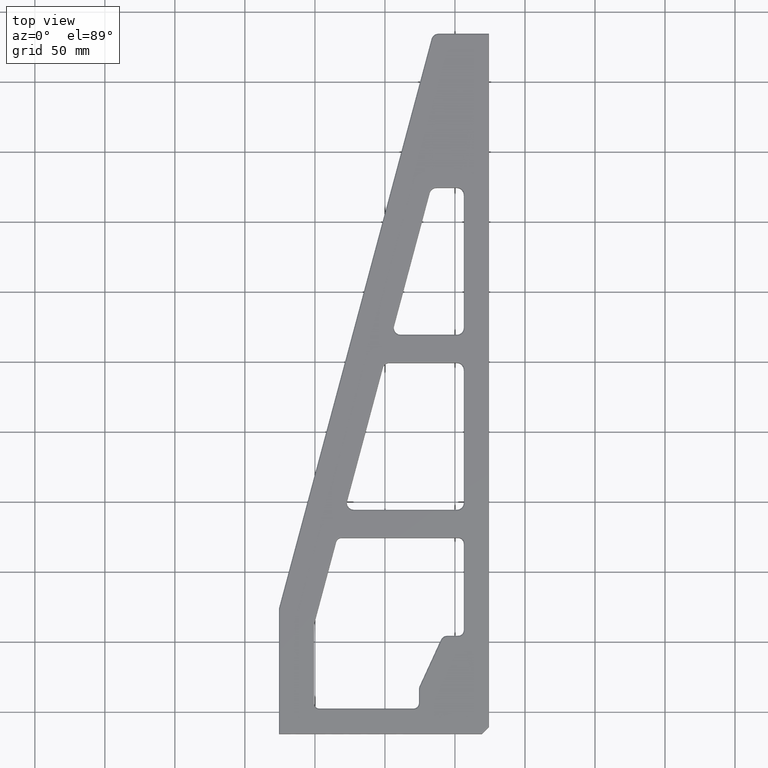
[diagram: clean part render]
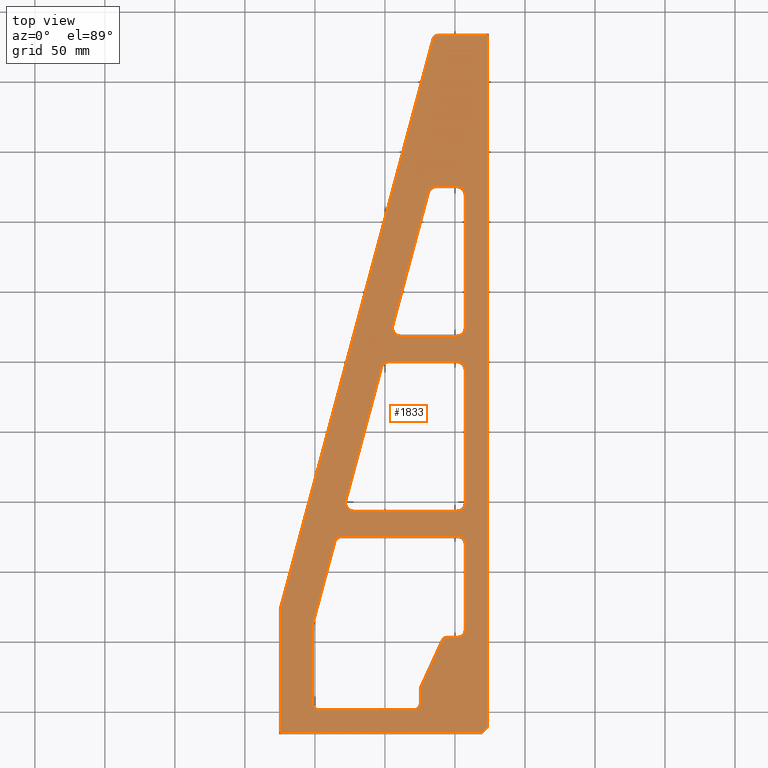
[diagram: same view with one face highlighted and labeled with its STEP entity id]
A machine part, top view. The second image highlights one B-rep face of the part: STEP entity #1833.
In plain terms, the highlighted planar face has unit normal (0, 0, 1).
Its self-contained STEP definition (entity closure, byte-faithful):
#2 = DIRECTION ( 'NONE',  ( -1.000000000000000000, 0.0000000000000000000, -0.0000000000000000000 ) ) ;
#32 = DIRECTION ( 'NONE',  ( 0.2588190451025175800, 0.9659258262890692000, -0.0000000000000000000 ) ) ;
#34 = AXIS2_PLACEMENT_3D ( 'NONE', #2063, #5828, #2611 ) ;
#72 = VERTEX_POINT ( 'NONE', #3406 ) ;
#87 = VECTOR ( 'NONE', #1468, 1000.000000000000000 ) ;
#109 = CARTESIAN_POINT ( 'NONE',  ( 109.9729316347385300, 496.0352761804101100, 18.00000000000001400 ) ) ;
#118 = AXIS2_PLACEMENT_3D ( 'NONE', #6537, #3843, #3318 ) ;
#123 = ORIENTED_EDGE ( 'NONE', *, *, #3271, .T. ) ;
#131 = VERTEX_POINT ( 'NONE', #283 ) ;
#173 = EDGE_CURVE ( 'NONE', #4154, #1102, #555, .T. ) ;
#183 = EDGE_CURVE ( 'NONE', #523, #2766, #6104, .T. ) ;
#265 = ORIENTED_EDGE ( 'NONE', *, *, #2588, .T. ) ;
#282 = VECTOR ( 'NONE', #3667, 1000.000000000000000 ) ;
#283 = CARTESIAN_POINT ( 'NONE',  ( 128.0000000000000000, 69.00000000000000000, 18.00000000000001400 ) ) ;
#291 = VECTOR ( 'NONE', #1096, 1000.000000000000000 ) ;
#319 = LINE ( 'NONE', #5278, #4242 ) ;
#328 = ORIENTED_EDGE ( 'NONE', *, *, #493, .T. ) ;
#361 = LINE ( 'NONE', #6826, #1592 ) ;
#383 = CIRCLE ( 'NONE', #6279, 5.000000000000004400 ) ;
#420 = PLANE ( 'NONE',  #5222 ) ;
#425 = VERTEX_POINT ( 'NONE', #2397 ) ;
#430 = AXIS2_PLACEMENT_3D ( 'NONE', #1911, #1500, #4808 ) ;
#493 = EDGE_CURVE ( 'NONE', #6581, #1005, #1957, .T. ) ;
#494 = CARTESIAN_POINT ( 'NONE',  ( 127.0000000000000000, 266.0000000000000000, 18.00000000000001400 ) ) ;
#501 = DIRECTION ( 'NONE',  ( 1.000000000000000000, 0.0000000000000000000, 0.0000000000000000000 ) ) ;
#506 = DIRECTION ( 'NONE',  ( 1.000000000000000000, 0.0000000000000000000, 0.0000000000000000000 ) ) ;
#510 = VECTOR ( 'NONE', #760, 1000.000000000000000 ) ;
#512 = EDGE_CURVE ( 'NONE', #425, #2935, #4493, .T. ) ;
#523 = VERTEX_POINT ( 'NONE', #4246 ) ;
#555 = CIRCLE ( 'NONE', #6751, 6.000000000000005300 ) ;
#590 = LINE ( 'NONE', #3891, #4870 ) ;
#592 = LINE ( 'NONE', #5408, #4711 ) ;
#603 = ORIENTED_EDGE ( 'NONE', *, *, #2806, .T. ) ;
#612 = ORIENTED_EDGE ( 'NONE', *, *, #3686, .T. ) ;
#626 = ORIENTED_EDGE ( 'NONE', *, *, #3617, .T. ) ;
#630 = ORIENTED_EDGE ( 'NONE', *, *, #173, .T. ) ;
#631 = VECTOR ( 'NONE', #4149, 1000.000000000000000 ) ;
#652 = FACE_BOUND ( 'NONE', #5714, .T. ) ;
#664 = AXIS2_PLACEMENT_3D ( 'NONE', #3788, #1079, #6549 ) ;
#674 = DIRECTION ( 'NONE',  ( 1.000000000000000000, 0.0000000000000000000, 0.0000000000000000000 ) ) ;
#702 = CARTESIAN_POINT ( 'NONE',  ( 127.0000000000000000, 391.0000000000000000, 18.00000000000001400 ) ) ;
#712 = LINE ( 'NONE', #3798, #2299 ) ;
#748 = VECTOR ( 'NONE', #2, 1000.000000000000000 ) ;
#760 = DIRECTION ( 'NONE',  ( 1.000000000000000000, -0.0000000000000000000, -0.0000000000000000000 ) ) ;
#772 = DIRECTION ( 'NONE',  ( -0.2588190451025177400, -0.9659258262890690900, 0.0000000000000000000 ) ) ;
#786 = DIRECTION ( 'NONE',  ( 0.0000000000000000000, -0.0000000000000000000, -1.000000000000000000 ) ) ;
#799 = DIRECTION ( 'NONE',  ( 1.000000000000000000, 0.0000000000000000000, 0.0000000000000000000 ) ) ;
#834 = LINE ( 'NONE', #6916, #282 ) ;
#903 = DIRECTION ( 'NONE',  ( 0.0000000000000000000, -0.0000000000000000000, -1.000000000000000000 ) ) ;
#908 = EDGE_CURVE ( 'NONE', #2454, #2963, #590, .T. ) ;
#919 = DIRECTION ( 'NONE',  ( 0.0000000000000000000, -0.0000000000000000000, -1.000000000000000000 ) ) ;
#924 = CARTESIAN_POINT ( 'NONE',  ( 100.9999999999999900, 21.99999999999999300, 18.00000000000001400 ) ) ;
#932 = AXIS2_PLACEMENT_3D ( 'NONE', #2401, #3474, #799 ) ;
#939 = VERTEX_POINT ( 'NONE', #2230 ) ;
#986 = EDGE_CURVE ( 'NONE', #939, #6798, #4021, .T. ) ;
#993 = CARTESIAN_POINT ( 'NONE',  ( 133.0000000000000000, 136.0000000000000000, 18.00000000000001400 ) ) ;
#1004 = CARTESIAN_POINT ( 'NONE',  ( 127.0000000000000000, 266.0000000000000000, 18.00000000000001400 ) ) ;
#1005 = VERTEX_POINT ( 'NONE', #1215 ) ;
#1014 = CARTESIAN_POINT ( 'NONE',  ( 149.0000000000000000, 500.0000000000000000, 18.00000000000001400 ) ) ;
#1073 = AXIS2_PLACEMENT_3D ( 'NONE', #3341, #6570, #6035 ) ;
#1079 = DIRECTION ( 'NONE',  ( 0.0000000000000000000, -0.0000000000000000000, -1.000000000000000000 ) ) ;
#1096 = DIRECTION ( 'NONE',  ( -0.0000000000000000000, -1.000000000000000000, 0.0000000000000000000 ) ) ;
#1102 = VERTEX_POINT ( 'NONE', #1896 ) ;
#1126 = EDGE_CURVE ( 'NONE', #5404, #72, #3601, .T. ) ;
#1146 = EDGE_CURVE ( 'NONE', #131, #6492, #2337, .T. ) ;
#1155 = ORIENTED_EDGE ( 'NONE', *, *, #2760, .T. ) ;
#1171 = VECTOR ( 'NONE', #772, 1000.000000000000100 ) ;
#1178 = VECTOR ( 'NONE', #1550, 1000.000000000000000 ) ;
#1184 = CARTESIAN_POINT ( 'NONE',  ( 47.69240568582335300, 166.5529142706151000, 18.00000000000001400 ) ) ;
#1215 = CARTESIAN_POINT ( 'NONE',  ( 28.99999999999999600, 16.99999999999998600, 18.00000000000001400 ) ) ;
#1227 = VERTEX_POINT ( 'NONE', #3655 ) ;
#1263 = CARTESIAN_POINT ( 'NONE',  ( 28.99999999999999600, 16.99999999999998600, 18.00000000000001400 ) ) ;
#1405 = EDGE_CURVE ( 'NONE', #5510, #5342, #6895, .T. ) ;
#1442 = DIRECTION ( 'NONE',  ( 1.000000000000000000, 0.0000000000000000000, 0.0000000000000000000 ) ) ;
#1444 = ORIENTED_EDGE ( 'NONE', *, *, #4741, .T. ) ;
#1452 = CIRCLE ( 'NONE', #34, 4.000000000000000000 ) ;
#1457 = CARTESIAN_POINT ( 'NONE',  ( 149.0000000000000000, 499.0000000000000000, 18.00000000000001400 ) ) ;
#1468 = DIRECTION ( 'NONE',  ( 1.156482317317871500E-016, 1.000000000000000000, -0.0000000000000000000 ) ) ;
#1474 = VERTEX_POINT ( 'NONE', #3610 ) ;
#1476 = CARTESIAN_POINT ( 'NONE',  ( 120.2052089382438900, 69.00000000000000000, 18.00000000000001400 ) ) ;
#1496 = ORIENTED_EDGE ( 'NONE', *, *, #3257, .T. ) ;
#1499 = DIRECTION ( 'NONE',  ( 0.0000000000000000000, -0.0000000000000000000, -1.000000000000000000 ) ) ;
#1500 = DIRECTION ( 'NONE',  ( 0.0000000000000000000, -0.0000000000000000000, -1.000000000000000000 ) ) ;
#1530 = EDGE_CURVE ( 'NONE', #2425, #2370, #5531, .T. ) ;
#1546 = VECTOR ( 'NONE', #3119, 1000.000000000000000 ) ;
#1550 = DIRECTION ( 'NONE',  ( 0.0000000000000000000, 1.000000000000000000, -0.0000000000000000000 ) ) ;
#1558 = AXIS2_PLACEMENT_3D ( 'NONE', #4688, #919, #4144 ) ;
#1570 = AXIS2_PLACEMENT_3D ( 'NONE', #6016, #2792, #6544 ) ;
#1592 = VECTOR ( 'NONE', #3056, 1000.000000000000000 ) ;
#1635 = DIRECTION ( 'NONE',  ( -1.000000000000000000, 0.0000000000000000000, -0.0000000000000000000 ) ) ;
#1636 = CARTESIAN_POINT ( 'NONE',  ( 133.0000000000000000, 74.00000000000001400, 18.00000000000001400 ) ) ;
#1684 = EDGE_CURVE ( 'NONE', #3139, #5640, #4522, .T. ) ;
#1725 = EDGE_LOOP ( 'NONE', ( #6569, #4695, #5059, #3223, #6784, #3106, #328, #2579, #5043, #1934, #4847, #603, #3558, #3885, #6407, #1155 ) ) ;
#1746 = CIRCLE ( 'NONE', #6625, 4.999999999999997300 ) ;
#1756 = LINE ( 'NONE', #6484, #3206 ) ;
#1829 = ORIENTED_EDGE ( 'NONE', *, *, #908, .T. ) ;
#1833 = ADVANCED_FACE ( 'NONE', ( #6038, #1903, #652, #4611 ), #420, .T. ) ;
#1859 = LINE ( 'NONE', #1636, #291 ) ;
#1870 = CARTESIAN_POINT ( 'NONE',  ( 133.0000000000000000, 385.0000000000000000, 18.00000000000001400 ) ) ;
#1889 = LINE ( 'NONE', #1004, #3162 ) ;
#1896 = CARTESIAN_POINT ( 'NONE',  ( 112.4367829784039800, 391.0000000000000000, 18.00000000000001400 ) ) ;
#1903 = FACE_BOUND ( 'NONE', #1725, .T. ) ;
#1911 = CARTESIAN_POINT ( 'NONE',  ( 44.68215788264526400, 136.0000000000000000, 18.00000000000001400 ) ) ;
#1914 = LINE ( 'NONE', #6130, #510 ) ;
#1934 = ORIENTED_EDGE ( 'NONE', *, *, #6290, .T. ) ;
#1937 = CARTESIAN_POINT ( 'NONE',  ( 39.85252875119992000, 137.2940952255126200, 18.00000000000001400 ) ) ;
#1957 = LINE ( 'NONE', #1263, #5921 ) ;
#1959 = ORIENTED_EDGE ( 'NONE', *, *, #1530, .T. ) ;
#1994 = DIRECTION ( 'NONE',  ( 1.000000000000000000, 0.0000000000000000000, 0.0000000000000000000 ) ) ;
#1999 = CARTESIAN_POINT ( 'NONE',  ( 23.99999999999999300, 21.99999999999999300, 18.00000000000001400 ) ) ;
#2008 = CIRCLE ( 'NONE', #5672, 6.000000000000005300 ) ;
#2059 = DIRECTION ( 'NONE',  ( -1.000000000000000000, -2.775557561562891400E-016, -0.0000000000000000000 ) ) ;
#2063 = CARTESIAN_POINT ( 'NONE',  ( 4.999999999999990200, 88.81614867948134400, 18.00000000000001400 ) ) ;
#2068 = VERTEX_POINT ( 'NONE', #1937 ) ;
#2214 = VERTEX_POINT ( 'NONE', #1870 ) ;
#2218 = ORIENTED_EDGE ( 'NONE', *, *, #512, .T. ) ;
#2230 = CARTESIAN_POINT ( 'NONE',  ( 133.0000000000000000, 165.0000000000000000, 18.00000000000001400 ) ) ;
#2271 = CARTESIAN_POINT ( 'NONE',  ( 101.0000000000000000, 31.90630995793983300, 18.00000000000001400 ) ) ;
#2290 = DIRECTION ( 'NONE',  ( 0.0000000000000000000, -0.0000000000000000000, -1.000000000000000000 ) ) ;
#2299 = VECTOR ( 'NONE', #4335, 1000.000000000000000 ) ;
#2301 = EDGE_CURVE ( 'NONE', #4761, #6708, #2610, .T. ) ;
#2310 = CARTESIAN_POINT ( 'NONE',  ( 24.00000000000000000, 77.47339000965040200, 18.00000000000001400 ) ) ;
#2334 = VERTEX_POINT ( 'NONE', #6900 ) ;
#2337 = LINE ( 'NONE', #4653, #748 ) ;
#2370 = VERTEX_POINT ( 'NONE', #3261 ) ;
#2397 = CARTESIAN_POINT ( 'NONE',  ( 113.8366349398948100, 499.0000000000000000, 18.00000000000001400 ) ) ;
#2401 = CARTESIAN_POINT ( 'NONE',  ( 127.0000000000000000, 260.0000000000000000, 18.00000000000001400 ) ) ;
#2425 = VERTEX_POINT ( 'NONE', #6617 ) ;
#2454 = VERTEX_POINT ( 'NONE', #3265 ) ;
#2480 = VERTEX_POINT ( 'NONE', #2271 ) ;
#2494 = DIRECTION ( 'NONE',  ( 1.000000000000000000, -0.0000000000000000000, -0.0000000000000000000 ) ) ;
#2576 = CARTESIAN_POINT ( 'NONE',  ( 116.5705015623906300, 66.67000068620285400, 18.00000000000001400 ) ) ;
#2579 = ORIENTED_EDGE ( 'NONE', *, *, #6152, .T. ) ;
#2588 = EDGE_CURVE ( 'NONE', #1102, #5942, #6440, .T. ) ;
#2610 = LINE ( 'NONE', #3567, #3516 ) ;
#2611 = DIRECTION ( 'NONE',  ( 1.000000000000000000, 0.0000000000000000000, 0.0000000000000000000 ) ) ;
#2612 = AXIS2_PLACEMENT_3D ( 'NONE', #4585, #3086, #506 ) ;
#2635 = CARTESIAN_POINT ( 'NONE',  ( 133.0000000000000000, 74.00000000000001400, 18.00000000000001400 ) ) ;
#2658 = CIRCLE ( 'NONE', #3653, 6.000000000000005300 ) ;
#2686 = ORIENTED_EDGE ( 'NONE', *, *, #5420, .T. ) ;
#2722 = CARTESIAN_POINT ( 'NONE',  ( 127.0000000000000000, 385.0000000000000000, 18.00000000000001400 ) ) ;
#2760 = EDGE_CURVE ( 'NONE', #6011, #131, #5602, .T. ) ;
#2766 = VERTEX_POINT ( 'NONE', #3100 ) ;
#2781 = LINE ( 'NONE', #4538, #1171 ) ;
#2783 = DIRECTION ( 'NONE',  ( 0.2588190451025177400, 0.9659258262890692000, -0.0000000000000000000 ) ) ;
#2792 = DIRECTION ( 'NONE',  ( 0.0000000000000000000, -0.0000000000000000000, -1.000000000000000000 ) ) ;
#2806 = EDGE_CURVE ( 'NONE', #2068, #1474, #3320, .T. ) ;
#2820 = VECTOR ( 'NONE', #6912, 1000.000000000000000 ) ;
#2828 = VERTEX_POINT ( 'NONE', #5361 ) ;
#2841 = EDGE_CURVE ( 'NONE', #4388, #5404, #1889, .T. ) ;
#2893 = DIRECTION ( 'NONE',  ( 0.7071067811865474600, 0.7071067811865474600, -0.0000000000000000000 ) ) ;
#2896 = EDGE_CURVE ( 'NONE', #5010, #4388, #2658, .T. ) ;
#2899 = CARTESIAN_POINT ( 'NONE',  ( 105.0000000000000100, 31.90630995793983300, 18.00000000000001400 ) ) ;
#2935 = VERTEX_POINT ( 'NONE', #109 ) ;
#2963 = VERTEX_POINT ( 'NONE', #5622 ) ;
#2966 = ORIENTED_EDGE ( 'NONE', *, *, #5324, .T. ) ;
#2992 = LINE ( 'NONE', #5256, #1546 ) ;
#3022 = CARTESIAN_POINT ( 'NONE',  ( 24.17037086855465600, 78.76748523516298000, 18.00000000000001400 ) ) ;
#3056 = DIRECTION ( 'NONE',  ( -0.4175001715507113400, -0.9086768439633127200, -0.0000000000000000000 ) ) ;
#3077 = DIRECTION ( 'NONE',  ( -0.0000000000000000000, 0.0000000000000000000, 1.000000000000000000 ) ) ;
#3086 = DIRECTION ( 'NONE',  ( 0.0000000000000000000, -0.0000000000000000000, -1.000000000000000000 ) ) ;
#3100 = CARTESIAN_POINT ( 'NONE',  ( 81.18605473971325600, 291.5529142706151300, 18.00000000000001400 ) ) ;
#3106 = ORIENTED_EDGE ( 'NONE', *, *, #4713, .T. ) ;
#3119 = DIRECTION ( 'NONE',  ( 0.2588190451025174100, 0.9659258262890692000, -0.0000000000000000000 ) ) ;
#3139 = VERTEX_POINT ( 'NONE', #1999 ) ;
#3162 = VECTOR ( 'NONE', #4492, 1000.000000000000000 ) ;
#3206 = VECTOR ( 'NONE', #5938, 1000.000000000000000 ) ;
#3223 = ORIENTED_EDGE ( 'NONE', *, *, #5654, .T. ) ;
#3224 = EDGE_CURVE ( 'NONE', #2480, #2828, #6015, .T. ) ;
#3249 = AXIS2_PLACEMENT_3D ( 'NONE', #6292, #3077, #6841 ) ;
#3257 = EDGE_CURVE ( 'NONE', #2766, #4154, #2992, .T. ) ;
#3259 = DIRECTION ( 'NONE',  ( 1.000000000000000000, 0.0000000000000000000, 0.0000000000000000000 ) ) ;
#3261 = CARTESIAN_POINT ( 'NONE',  ( 127.0000000000000000, 284.0000000000000600, 18.00000000000001400 ) ) ;
#3265 = CARTESIAN_POINT ( 'NONE',  ( 144.5857864376268900, 1.000000000000000900, 18.00000000000001400 ) ) ;
#3271 = EDGE_CURVE ( 'NONE', #4973, #5010, #319, .T. ) ;
#3286 = EDGE_CURVE ( 'NONE', #4300, #425, #5671, .T. ) ;
#3318 = DIRECTION ( 'NONE',  ( 1.000000000000000000, 0.0000000000000000000, 0.0000000000000000000 ) ) ;
#3320 = CIRCLE ( 'NONE', #430, 4.999999999999997300 ) ;
#3321 = VERTEX_POINT ( 'NONE', #6938 ) ;
#3341 = CARTESIAN_POINT ( 'NONE',  ( 127.0000000000000000, 165.0000000000000000, 18.00000000000001400 ) ) ;
#3379 = CARTESIAN_POINT ( 'NONE',  ( 24.00000000000000000, 77.47339000965040200, 18.00000000000001400 ) ) ;
#3406 = CARTESIAN_POINT ( 'NONE',  ( 133.0000000000000000, 260.0000000000000000, 18.00000000000001400 ) ) ;
#3415 = EDGE_CURVE ( 'NONE', #6798, #3321, #712, .T. ) ;
#3423 = DIRECTION ( 'NONE',  ( 1.000000000000000000, 0.0000000000000000000, 0.0000000000000000000 ) ) ;
#3474 = DIRECTION ( 'NONE',  ( 0.0000000000000000000, -0.0000000000000000000, -1.000000000000000000 ) ) ;
#3516 = VECTOR ( 'NONE', #6969, 1000.000000000000000 ) ;
#3527 = EDGE_CURVE ( 'NONE', #6434, #2068, #6860, .T. ) ;
#3558 = ORIENTED_EDGE ( 'NONE', *, *, #6280, .T. ) ;
#3567 = CARTESIAN_POINT ( 'NONE',  ( 1.000000000000000900, 0.0000000000000000000, 18.00000000000001400 ) ) ;
#3601 = CIRCLE ( 'NONE', #932, 6.000000000000005300 ) ;
#3610 = CARTESIAN_POINT ( 'NONE',  ( 44.68215788264526400, 141.0000000000000000, 18.00000000000001400 ) ) ;
#3617 = EDGE_CURVE ( 'NONE', #3321, #4973, #4902, .T. ) ;
#3653 = AXIS2_PLACEMENT_3D ( 'NONE', #4127, #903, #1442 ) ;
#3655 = CARTESIAN_POINT ( 'NONE',  ( 1.136296694843719200, 89.85142485989142400, 18.00000000000001400 ) ) ;
#3662 = DIRECTION ( 'NONE',  ( -0.0000000000000000000, 0.0000000000000000000, 1.000000000000000000 ) ) ;
#3667 = DIRECTION ( 'NONE',  ( -0.0000000000000000000, -1.000000000000000000, 0.0000000000000000000 ) ) ;
#3686 = EDGE_CURVE ( 'NONE', #6708, #2454, #5070, .T. ) ;
#3696 = DIRECTION ( 'NONE',  ( -0.0000000000000000000, 0.0000000000000000000, 1.000000000000000000 ) ) ;
#3765 = CIRCLE ( 'NONE', #3249, 4.000000000000003600 ) ;
#3788 = CARTESIAN_POINT ( 'NONE',  ( 127.0000000000000000, 290.0000000000000600, 18.00000000000001400 ) ) ;
#3798 = CARTESIAN_POINT ( 'NONE',  ( 53.48796064355776300, 159.0000000000000000, 18.00000000000001400 ) ) ;
#3843 = DIRECTION ( 'NONE',  ( 0.0000000000000000000, -0.0000000000000000000, -1.000000000000000000 ) ) ;
#3885 = ORIENTED_EDGE ( 'NONE', *, *, #1405, .T. ) ;
#3891 = CARTESIAN_POINT ( 'NONE',  ( 71.79289321881343300, -71.79289321881343300, 18.00000000000001400 ) ) ;
#3894 = VERTEX_POINT ( 'NONE', #2576 ) ;
#3904 = CARTESIAN_POINT ( 'NONE',  ( 127.0000000000000000, 159.0000000000000000, 18.00000000000001400 ) ) ;
#3991 = ORIENTED_EDGE ( 'NONE', *, *, #2896, .T. ) ;
#3998 = CARTESIAN_POINT ( 'NONE',  ( 28.99999999999999600, 77.47339000965040200, 18.00000000000001400 ) ) ;
#4021 = CIRCLE ( 'NONE', #1073, 6.000000000000005300 ) ;
#4058 = ORIENTED_EDGE ( 'NONE', *, *, #2841, .T. ) ;
#4066 = CARTESIAN_POINT ( 'NONE',  ( 145.0000000000000000, 1.000000000000000900, 18.00000000000001400 ) ) ;
#4127 = CARTESIAN_POINT ( 'NONE',  ( 78.94313392451408600, 260.0000000000000000, 18.00000000000001400 ) ) ;
#4144 = DIRECTION ( 'NONE',  ( 1.000000000000000000, 0.0000000000000000000, 0.0000000000000000000 ) ) ;
#4149 = DIRECTION ( 'NONE',  ( -9.251858538542971800E-016, -1.000000000000000000, -0.0000000000000000000 ) ) ;
#4154 = VERTEX_POINT ( 'NONE', #4541 ) ;
#4179 = CARTESIAN_POINT ( 'NONE',  ( 128.0000000000000000, 74.00000000000001400, 18.00000000000001400 ) ) ;
#4214 = CARTESIAN_POINT ( 'NONE',  ( 113.8366349398948100, 499.0000000000000000, 18.00000000000001400 ) ) ;
#4242 = VECTOR ( 'NONE', #32, 1000.000000000000100 ) ;
#4246 = CARTESIAN_POINT ( 'NONE',  ( 86.98160969744766600, 284.0000000000000600, 18.00000000000001400 ) ) ;
#4300 = VERTEX_POINT ( 'NONE', #1457 ) ;
#4335 = DIRECTION ( 'NONE',  ( -1.000000000000000000, 0.0000000000000000000, -0.0000000000000000000 ) ) ;
#4376 = CIRCLE ( 'NONE', #6322, 4.000000000000003600 ) ;
#4382 = CARTESIAN_POINT ( 'NONE',  ( 1.000000000000000900, 1.000000000000000900, 18.00000000000001400 ) ) ;
#4388 = VERTEX_POINT ( 'NONE', #4774 ) ;
#4443 = DIRECTION ( 'NONE',  ( 1.000000000000000000, -0.0000000000000000000, 0.0000000000000000000 ) ) ;
#4492 = DIRECTION ( 'NONE',  ( 1.000000000000000000, -0.0000000000000000000, -0.0000000000000000000 ) ) ;
#4493 = CIRCLE ( 'NONE', #6845, 4.000000000000003600 ) ;
#4522 = LINE ( 'NONE', #2310, #87 ) ;
#4538 = CARTESIAN_POINT ( 'NONE',  ( 1.136296694843747000, 89.85142485989155100, 18.00000000000001400 ) ) ;
#4541 = CARTESIAN_POINT ( 'NONE',  ( 106.6412280206695700, 386.5529142706151300, 18.00000000000001400 ) ) ;
#4552 = DIRECTION ( 'NONE',  ( 1.000000000000000000, 0.0000000000000000000, 0.0000000000000000000 ) ) ;
#4585 = CARTESIAN_POINT ( 'NONE',  ( 128.0000000000000000, 136.0000000000000000, 18.00000000000001400 ) ) ;
#4591 = ORIENTED_EDGE ( 'NONE', *, *, #986, .T. ) ;
#4611 = FACE_BOUND ( 'NONE', #5535, .T. ) ;
#4653 = CARTESIAN_POINT ( 'NONE',  ( 120.2052089382438900, 69.00000000000000000, 18.00000000000001400 ) ) ;
#4681 = ORIENTED_EDGE ( 'NONE', *, *, #3286, .T. ) ;
#4688 = CARTESIAN_POINT ( 'NONE',  ( 86.98160969744766600, 290.0000000000000600, 18.00000000000001400 ) ) ;
#4695 = ORIENTED_EDGE ( 'NONE', *, *, #6463, .T. ) ;
#4711 = VECTOR ( 'NONE', #1635, 1000.000000000000000 ) ;
#4713 = EDGE_CURVE ( 'NONE', #2828, #6581, #383, .T. ) ;
#4721 = CARTESIAN_POINT ( 'NONE',  ( 95.99999999999998600, 21.99999999999999300, 18.00000000000001400 ) ) ;
#4741 = EDGE_CURVE ( 'NONE', #1227, #4761, #1452, .T. ) ;
#4761 = VERTEX_POINT ( 'NONE', #5289 ) ;
#4774 = CARTESIAN_POINT ( 'NONE',  ( 78.94313392451408600, 266.0000000000000000, 18.00000000000001400 ) ) ;
#4808 = DIRECTION ( 'NONE',  ( 1.000000000000000000, 0.0000000000000000000, 0.0000000000000000000 ) ) ;
#4847 = ORIENTED_EDGE ( 'NONE', *, *, #3527, .T. ) ;
#4866 = EDGE_CURVE ( 'NONE', #5342, #6011, #1859, .T. ) ;
#4870 = VECTOR ( 'NONE', #2893, 1000.000000000000100 ) ;
#4902 = CIRCLE ( 'NONE', #118, 5.999999999999998200 ) ;
#4973 = VERTEX_POINT ( 'NONE', #1184 ) ;
#5008 = VECTOR ( 'NONE', #2494, 1000.000000000000000 ) ;
#5010 = VERTEX_POINT ( 'NONE', #5523 ) ;
#5043 = ORIENTED_EDGE ( 'NONE', *, *, #1684, .T. ) ;
#5059 = ORIENTED_EDGE ( 'NONE', *, *, #5887, .T. ) ;
#5068 = ORIENTED_EDGE ( 'NONE', *, *, #6087, .T. ) ;
#5070 = LINE ( 'NONE', #4066, #5840 ) ;
#5187 = ORIENTED_EDGE ( 'NONE', *, *, #3415, .T. ) ;
#5222 = AXIS2_PLACEMENT_3D ( 'NONE', #5789, #3662, #6354 ) ;
#5256 = CARTESIAN_POINT ( 'NONE',  ( 106.6412280206695700, 386.5529142706151300, 18.00000000000001400 ) ) ;
#5268 = DIRECTION ( 'NONE',  ( 1.000000000000000000, 0.0000000000000000000, 0.0000000000000000000 ) ) ;
#5278 = CARTESIAN_POINT ( 'NONE',  ( 73.14757896677969000, 261.5529142706151900, 18.00000000000001400 ) ) ;
#5289 = CARTESIAN_POINT ( 'NONE',  ( 1.000000000000000900, 88.81614867948134400, 18.00000000000001400 ) ) ;
#5318 = ORIENTED_EDGE ( 'NONE', *, *, #2301, .T. ) ;
#5321 = ORIENTED_EDGE ( 'NONE', *, *, #5544, .T. ) ;
#5324 = EDGE_CURVE ( 'NONE', #2214, #2425, #834, .T. ) ;
#5342 = VERTEX_POINT ( 'NONE', #993 ) ;
#5361 = CARTESIAN_POINT ( 'NONE',  ( 100.9999999999999900, 21.99999999999999300, 18.00000000000001400 ) ) ;
#5404 = VERTEX_POINT ( 'NONE', #494 ) ;
#5408 = CARTESIAN_POINT ( 'NONE',  ( 86.98160969744768100, 284.0000000000000600, 18.00000000000001400 ) ) ;
#5420 = EDGE_CURVE ( 'NONE', #2963, #4300, #6748, .T. ) ;
#5425 = VECTOR ( 'NONE', #2783, 999.9999999999998900 ) ;
#5471 = CIRCLE ( 'NONE', #1570, 4.999999999999997300 ) ;
#5510 = VERTEX_POINT ( 'NONE', #6459 ) ;
#5516 = EDGE_LOOP ( 'NONE', ( #1444, #5318, #612, #1829, #2686, #4681, #2218, #5670 ) ) ;
#5523 = CARTESIAN_POINT ( 'NONE',  ( 73.14757896677967600, 261.5529142706151300, 18.00000000000001400 ) ) ;
#5531 = CIRCLE ( 'NONE', #664, 6.000000000000005300 ) ;
#5535 = EDGE_LOOP ( 'NONE', ( #2966, #1959, #5759, #6062, #1496, #630, #265, #5068 ) ) ;
#5544 = EDGE_CURVE ( 'NONE', #72, #939, #1756, .T. ) ;
#5602 = CIRCLE ( 'NONE', #6314, 5.000000000000004400 ) ;
#5622 = CARTESIAN_POINT ( 'NONE',  ( 149.0000000000000000, 5.414213562373094000, 18.00000000000001400 ) ) ;
#5640 = VERTEX_POINT ( 'NONE', #3379 ) ;
#5654 = EDGE_CURVE ( 'NONE', #2334, #2480, #4376, .T. ) ;
#5670 = ORIENTED_EDGE ( 'NONE', *, *, #5720, .T. ) ;
#5671 = LINE ( 'NONE', #4214, #2820 ) ;
#5672 = AXIS2_PLACEMENT_3D ( 'NONE', #2722, #6472, #3259 ) ;
#5714 = EDGE_LOOP ( 'NONE', ( #5321, #4591, #5187, #626, #123, #3991, #4058, #6367 ) ) ;
#5720 = EDGE_CURVE ( 'NONE', #2935, #1227, #2781, .T. ) ;
#5759 = ORIENTED_EDGE ( 'NONE', *, *, #6097, .T. ) ;
#5771 = DIRECTION ( 'NONE',  ( 0.0000000000000000000, -0.0000000000000000000, -1.000000000000000000 ) ) ;
#5789 = CARTESIAN_POINT ( 'NONE',  ( 0.0000000000000000000, 0.0000000000000000000, 18.00000000000001400 ) ) ;
#5828 = DIRECTION ( 'NONE',  ( -0.0000000000000000000, 0.0000000000000000000, 1.000000000000000000 ) ) ;
#5840 = VECTOR ( 'NONE', #4443, 1000.000000000000000 ) ;
#5887 = EDGE_CURVE ( 'NONE', #3894, #2334, #361, .T. ) ;
#5888 = CARTESIAN_POINT ( 'NONE',  ( 39.85252875119992700, 137.2940952255126500, 18.00000000000001400 ) ) ;
#5921 = VECTOR ( 'NONE', #2059, 1000.000000000000000 ) ;
#5938 = DIRECTION ( 'NONE',  ( -0.0000000000000000000, -1.000000000000000000, 0.0000000000000000000 ) ) ;
#5942 = VERTEX_POINT ( 'NONE', #6318 ) ;
#6011 = VERTEX_POINT ( 'NONE', #2635 ) ;
#6015 = LINE ( 'NONE', #924, #631 ) ;
#6016 = CARTESIAN_POINT ( 'NONE',  ( 28.99999999999999600, 21.99999999999999300, 18.00000000000001400 ) ) ;
#6035 = DIRECTION ( 'NONE',  ( 1.000000000000000000, 0.0000000000000000000, 0.0000000000000000000 ) ) ;
#6038 = FACE_OUTER_BOUND ( 'NONE', #5516, .T. ) ;
#6062 = ORIENTED_EDGE ( 'NONE', *, *, #183, .T. ) ;
#6087 = EDGE_CURVE ( 'NONE', #5942, #2214, #2008, .T. ) ;
#6097 = EDGE_CURVE ( 'NONE', #2370, #523, #592, .T. ) ;
#6104 = CIRCLE ( 'NONE', #1558, 6.000000000000005300 ) ;
#6130 = CARTESIAN_POINT ( 'NONE',  ( 128.0000000000000000, 141.0000000000000000, 18.00000000000001400 ) ) ;
#6152 = EDGE_CURVE ( 'NONE', #1005, #3139, #5471, .T. ) ;
#6279 = AXIS2_PLACEMENT_3D ( 'NONE', #4721, #1499, #5268 ) ;
#6280 = EDGE_CURVE ( 'NONE', #1474, #5510, #1914, .T. ) ;
#6290 = EDGE_CURVE ( 'NONE', #5640, #6434, #1746, .T. ) ;
#6292 = CARTESIAN_POINT ( 'NONE',  ( 120.2052089382438900, 65.00000000000000000, 18.00000000000001400 ) ) ;
#6302 = CARTESIAN_POINT ( 'NONE',  ( 112.4367829784039800, 385.0000000000000000, 18.00000000000001400 ) ) ;
#6314 = AXIS2_PLACEMENT_3D ( 'NONE', #4179, #2290, #674 ) ;
#6318 = CARTESIAN_POINT ( 'NONE',  ( 127.0000000000000000, 391.0000000000000000, 18.00000000000001400 ) ) ;
#6322 = AXIS2_PLACEMENT_3D ( 'NONE', #2899, #6658, #3423 ) ;
#6354 = DIRECTION ( 'NONE',  ( 1.000000000000000000, 0.0000000000000000000, 0.0000000000000000000 ) ) ;
#6367 = ORIENTED_EDGE ( 'NONE', *, *, #1126, .T. ) ;
#6380 = CARTESIAN_POINT ( 'NONE',  ( 95.99999999999998600, 17.00000000000001400, 18.00000000000001400 ) ) ;
#6407 = ORIENTED_EDGE ( 'NONE', *, *, #4866, .T. ) ;
#6434 = VERTEX_POINT ( 'NONE', #3022 ) ;
#6440 = LINE ( 'NONE', #702, #5008 ) ;
#6459 = CARTESIAN_POINT ( 'NONE',  ( 128.0000000000000000, 141.0000000000000000, 18.00000000000001400 ) ) ;
#6463 = EDGE_CURVE ( 'NONE', #6492, #3894, #3765, .T. ) ;
#6472 = DIRECTION ( 'NONE',  ( 0.0000000000000000000, -0.0000000000000000000, -1.000000000000000000 ) ) ;
#6484 = CARTESIAN_POINT ( 'NONE',  ( 133.0000000000000000, 165.0000000000000000, 18.00000000000001400 ) ) ;
#6492 = VERTEX_POINT ( 'NONE', #1476 ) ;
#6537 = CARTESIAN_POINT ( 'NONE',  ( 53.48796064355776300, 165.0000000000000000, 18.00000000000001400 ) ) ;
#6544 = DIRECTION ( 'NONE',  ( 1.000000000000000000, 0.0000000000000000000, 0.0000000000000000000 ) ) ;
#6549 = DIRECTION ( 'NONE',  ( 1.000000000000000000, 0.0000000000000000000, 0.0000000000000000000 ) ) ;
#6569 = ORIENTED_EDGE ( 'NONE', *, *, #1146, .T. ) ;
#6570 = DIRECTION ( 'NONE',  ( 0.0000000000000000000, -0.0000000000000000000, -1.000000000000000000 ) ) ;
#6581 = VERTEX_POINT ( 'NONE', #6380 ) ;
#6617 = CARTESIAN_POINT ( 'NONE',  ( 133.0000000000000000, 290.0000000000000600, 18.00000000000001400 ) ) ;
#6625 = AXIS2_PLACEMENT_3D ( 'NONE', #3998, #786, #4552 ) ;
#6658 = DIRECTION ( 'NONE',  ( -0.0000000000000000000, 0.0000000000000000000, 1.000000000000000000 ) ) ;
#6708 = VERTEX_POINT ( 'NONE', #4382 ) ;
#6748 = LINE ( 'NONE', #1014, #1178 ) ;
#6751 = AXIS2_PLACEMENT_3D ( 'NONE', #6302, #5771, #1994 ) ;
#6784 = ORIENTED_EDGE ( 'NONE', *, *, #3224, .T. ) ;
#6798 = VERTEX_POINT ( 'NONE', #3904 ) ;
#6826 = CARTESIAN_POINT ( 'NONE',  ( 101.3652926241467600, 33.57631064414265200, 18.00000000000001400 ) ) ;
#6841 = DIRECTION ( 'NONE',  ( 1.000000000000000000, 0.0000000000000000000, 0.0000000000000000000 ) ) ;
#6845 = AXIS2_PLACEMENT_3D ( 'NONE', #6945, #3696, #501 ) ;
#6860 = LINE ( 'NONE', #5888, #5425 ) ;
#6895 = CIRCLE ( 'NONE', #2612, 5.000000000000004400 ) ;
#6900 = CARTESIAN_POINT ( 'NONE',  ( 101.3652926241467600, 33.57631064414265200, 18.00000000000001400 ) ) ;
#6912 = DIRECTION ( 'NONE',  ( -1.000000000000000000, 0.0000000000000000000, 0.0000000000000000000 ) ) ;
#6916 = CARTESIAN_POINT ( 'NONE',  ( 133.0000000000000000, 290.0000000000000600, 18.00000000000001400 ) ) ;
#6938 = CARTESIAN_POINT ( 'NONE',  ( 53.48796064355776300, 159.0000000000000000, 18.00000000000001400 ) ) ;
#6945 = CARTESIAN_POINT ( 'NONE',  ( 113.8366349398948100, 495.0000000000000000, 18.00000000000001400 ) ) ;
#6969 = DIRECTION ( 'NONE',  ( 3.877585676939323000E-017, -1.000000000000000000, 0.0000000000000000000 ) ) ;